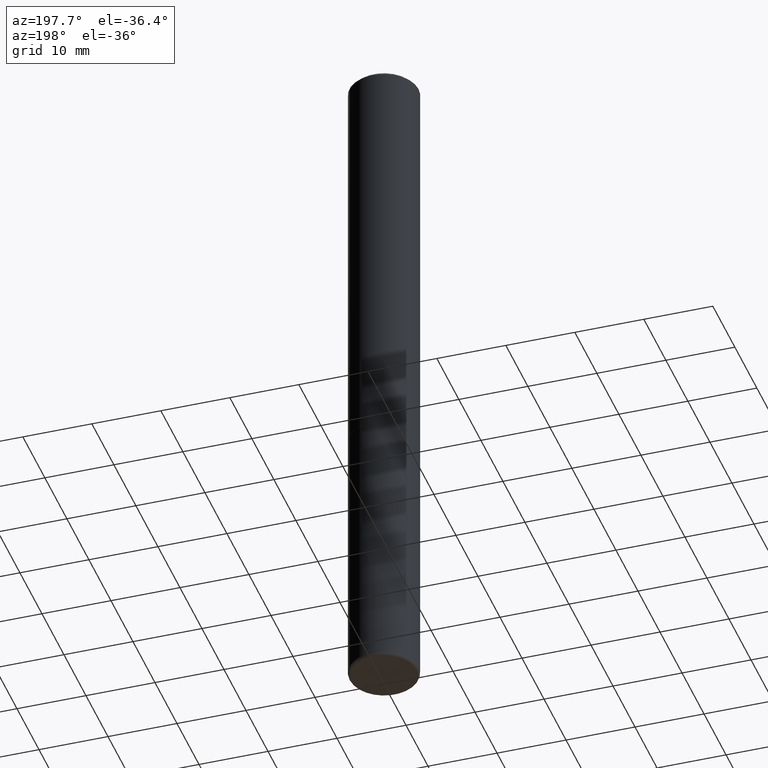
[diagram: clean part render]
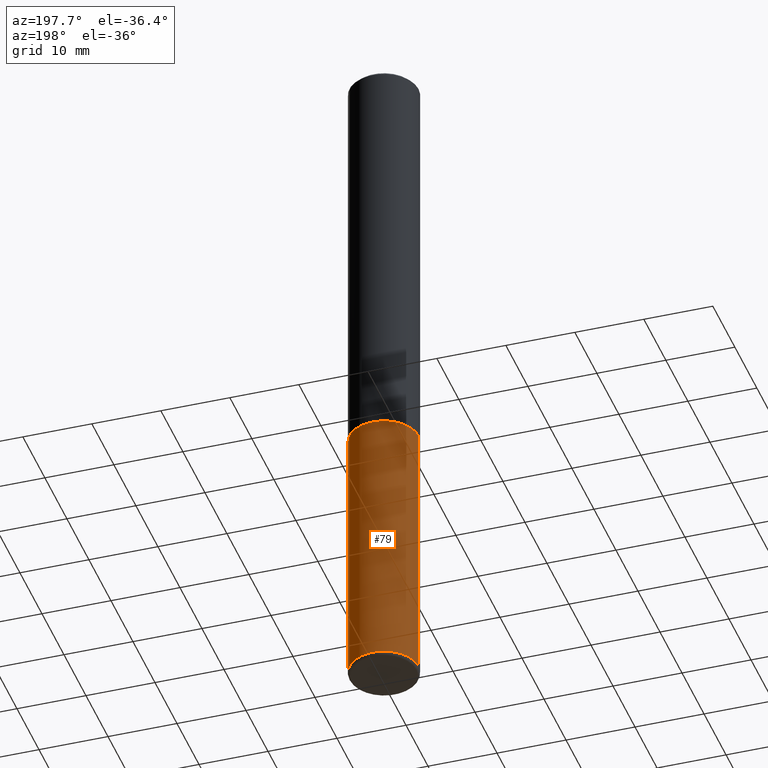
[diagram: same view with one face highlighted and labeled with its STEP entity id]
A machine part, auxiliary view. The second image highlights one B-rep face of the part: STEP entity #79.
In plain terms, the highlighted cylindrical surface (edge-blend (fillet) strip) has radius 5 mm, axis along (-0, 0, 1).
Its self-contained STEP definition (entity closure, byte-faithful):
#9 = DIRECTION ( 'NONE',  ( 1.000000000000000000, -6.982962677686269866E-15, 0.000000000000000000 ) ) ;
#10 = CARTESIAN_POINT ( 'NONE',  ( -0.1968500000000000250, -9.563675158289009718E-15, -2.362199999999999633 ) ) ;
#27 = AXIS2_PLACEMENT_3D ( 'NONE', #305, #229, #58 ) ;
#31 = ORIENTED_EDGE ( 'NONE', *, *, #311, .T. ) ;
#58 = DIRECTION ( 'NONE',  ( 1.000000000000000000, -6.982962677686262766E-15, 0.000000000000000000 ) ) ;
#67 = VERTEX_POINT ( 'NONE', #154 ) ;
#79 = ADVANCED_FACE ( 'NONE', ( #181 ), #252, .T. ) ;
#86 = CARTESIAN_POINT ( 'NONE',  ( -0.1968499999999999417, -1.227847647330649996E-14, -3.917300000000000448 ) ) ;
#87 = DIRECTION ( 'NONE',  ( -2.445468806185136597E-29, 3.491481338843145583E-15, 1.000000000000000000 ) ) ;
#96 = DIRECTION ( 'NONE',  ( -2.445468806185136877E-29, 3.491481338843145188E-15, 1.000000000000000000 ) ) ;
#113 = VERTEX_POINT ( 'NONE', #86 ) ;
#124 = CARTESIAN_POINT ( 'NONE',  ( 0.1968499999999999417, -1.505177605175279857E-14, -3.917300000000000448 ) ) ;
#142 = VERTEX_POINT ( 'NONE', #124 ) ;
#144 = CIRCLE ( 'NONE', #264, 0.1968499999999999694 ) ;
#147 = CARTESIAN_POINT ( 'NONE',  ( 0.000000000000000000, 0.000000000000000000, 0.000000000000000000 ) ) ;
#148 = EDGE_CURVE ( 'NONE', #142, #67, #382, .T. ) ;
#154 = CARTESIAN_POINT ( 'NONE',  ( 0.1968500000000000250, -9.622173421717819657E-15, -2.362199999999999633 ) ) ;
#157 = LINE ( 'NONE', #313, #416 ) ;
#172 = EDGE_LOOP ( 'NONE', ( #236, #31, #397, #275 ) ) ;
#181 = FACE_OUTER_BOUND ( 'NONE', #172, .T. ) ;
#195 = VECTOR ( 'NONE', #96, 39.37007874015748143 ) ;
#221 = DIRECTION ( 'NONE',  ( 1.000000000000000000, -6.982962677686266711E-15, 4.876176775795935793E-29 ) ) ;
#222 = EDGE_CURVE ( 'NONE', #67, #336, #319, .T. ) ;
#224 = CARTESIAN_POINT ( 'NONE',  ( 0.1968499999999999694, -1.374596203102541411E-15, 9.598753983154298056E-30 ) ) ;
#229 = DIRECTION ( 'NONE',  ( -2.445468806185136597E-29, 3.491481338843145583E-15, 1.000000000000000000 ) ) ;
#236 = ORIENTED_EDGE ( 'NONE', *, *, #289, .T. ) ;
#252 = CYLINDRICAL_SURFACE ( 'NONE', #407, 0.1968499999999999694 ) ;
#264 = AXIS2_PLACEMENT_3D ( 'NONE', #278, #345, #9 ) ;
#275 = ORIENTED_EDGE ( 'NONE', *, *, #148, .F. ) ;
#278 = CARTESIAN_POINT ( 'NONE',  ( 9.579634954469036932E-29, -1.367717984865025539E-14, -3.917300000000000448 ) ) ;
#288 = DIRECTION ( 'NONE',  ( -2.445468806185136877E-29, 3.491481338843145188E-15, 1.000000000000000000 ) ) ;
#289 = EDGE_CURVE ( 'NONE', #142, #113, #144, .T. ) ;
#305 = CARTESIAN_POINT ( 'NONE',  ( 5.776686413970529753E-29, -8.247577218615278049E-15, -2.362199999999999633 ) ) ;
#311 = EDGE_CURVE ( 'NONE', #113, #336, #157, .T. ) ;
#313 = CARTESIAN_POINT ( 'NONE',  ( -0.1968499999999999694, 1.398703375343756999E-15, -9.682923725166782276E-30 ) ) ;
#319 = CIRCLE ( 'NONE', #27, 0.1968500000000000250 ) ;
#336 = VERTEX_POINT ( 'NONE', #10 ) ;
#345 = DIRECTION ( 'NONE',  ( -2.445468806185136597E-29, 3.491481338843145583E-15, 1.000000000000000000 ) ) ;
#382 = LINE ( 'NONE', #224, #195 ) ;
#397 = ORIENTED_EDGE ( 'NONE', *, *, #222, .F. ) ;
#407 = AXIS2_PLACEMENT_3D ( 'NONE', #147, #87, #221 ) ;
#416 = VECTOR ( 'NONE', #288, 39.37007874015748143 ) ;